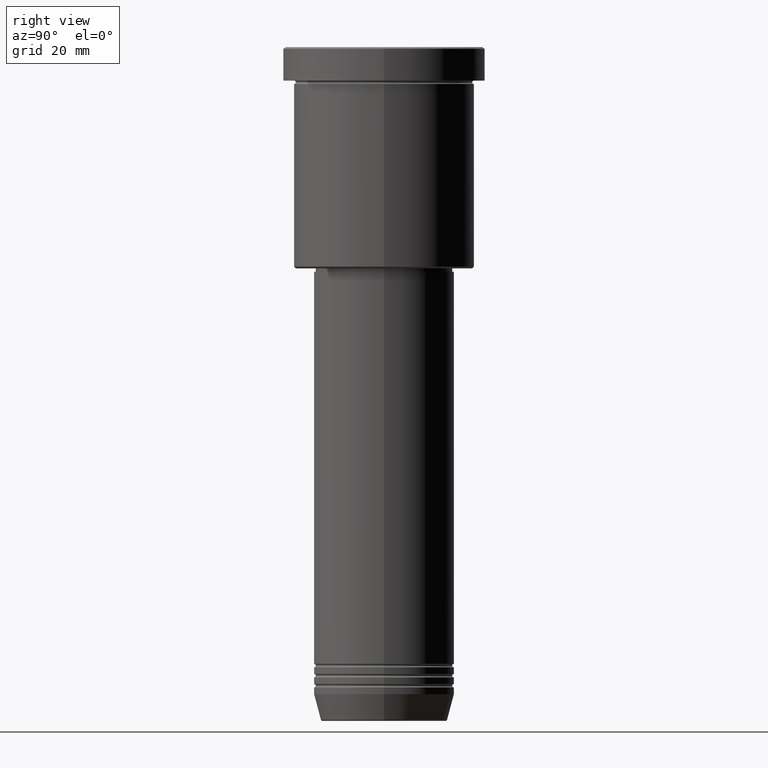
[diagram: clean part render]
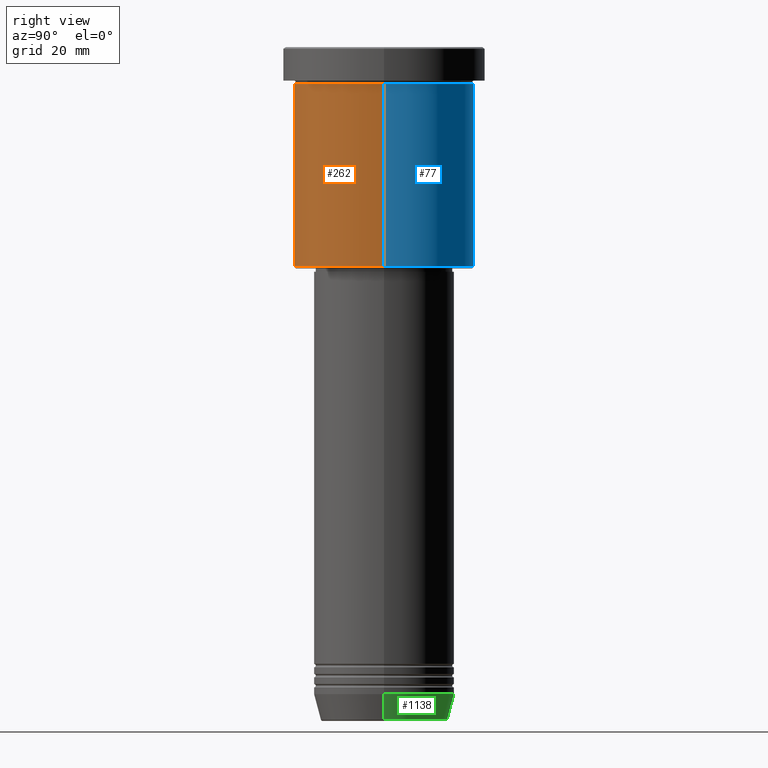
[diagram: same view with three faces highlighted in distinct colors, each labeled with its STEP entity id]
A machine part, right view with three faces highlighted in distinct colors.
Their STEP definitions:

[orange] entity #262 — the highlighted cylindrical surface (partial cylindrical patch) has radius 27 mm, axis along (-0, -0, 1).
#49 = DIRECTION ( 'NONE',  ( 1.000000000000000000, 0.000000000000000000, 0.000000000000000000 ) ) ;
#87 = EDGE_CURVE ( 'NONE', #1119, #996, #559, .T. ) ;
#127 = DIRECTION ( 'NONE',  ( -0.000000000000000000, -0.000000000000000000, 1.000000000000000000 ) ) ;
#151 = DIRECTION ( 'NONE',  ( -0.000000000000000000, -0.000000000000000000, 1.000000000000000000 ) ) ;
#161 = EDGE_CURVE ( 'NONE', #1119, #642, #1127, .T. ) ;
#166 = ORIENTED_EDGE ( 'NONE', *, *, #647, .F. ) ;
#201 = ORIENTED_EDGE ( 'NONE', *, *, #161, .T. ) ;
#211 = EDGE_LOOP ( 'NONE', ( #1009, #201, #582, #166 ) ) ;
#227 = CARTESIAN_POINT ( 'NONE',  ( 0.000000000000000000, 0.000000000000000000, 0.000000000000000000 ) ) ;
#262 = ADVANCED_FACE ( 'NONE', ( #587 ), #953, .T. ) ;
#309 = DIRECTION ( 'NONE',  ( -0.000000000000000000, -0.000000000000000000, 1.000000000000000000 ) ) ;
#328 = EDGE_CURVE ( 'NONE', #642, #1120, #335, .T. ) ;
#335 = LINE ( 'NONE', #1067, #374 ) ;
#374 = VECTOR ( 'NONE', #1159, 1000.000000000000000 ) ;
#484 = DIRECTION ( 'NONE',  ( -0.000000000000000000, -0.000000000000000000, 1.000000000000000000 ) ) ;
#511 = DIRECTION ( 'NONE',  ( -1.000000000000000000, 0.000000000000000000, 0.000000000000000000 ) ) ;
#559 = LINE ( 'NONE', #1123, #579 ) ;
#579 = VECTOR ( 'NONE', #127, 1000.000000000000000 ) ;
#582 = ORIENTED_EDGE ( 'NONE', *, *, #328, .T. ) ;
#587 = FACE_OUTER_BOUND ( 'NONE', #211, .T. ) ;
#635 = AXIS2_PLACEMENT_3D ( 'NONE', #1055, #151, #511 ) ;
#642 = VERTEX_POINT ( 'NONE', #1026 ) ;
#647 = EDGE_CURVE ( 'NONE', #996, #1120, #728, .T. ) ;
#728 = CIRCLE ( 'NONE', #1050, 27.00000000000000355 ) ;
#739 = CARTESIAN_POINT ( 'NONE',  ( 27.00000000000000355, 0.000000000000000000, -10.99999999999999289 ) ) ;
#742 = CARTESIAN_POINT ( 'NONE',  ( -27.00000000000000355, 3.306546357697854128E-15, -65.50000000000002842 ) ) ;
#776 = CARTESIAN_POINT ( 'NONE',  ( 0.000000000000000000, 0.000000000000000000, -10.99999999999999289 ) ) ;
#822 = CARTESIAN_POINT ( 'NONE',  ( -27.00000000000000355, 3.306546357697854128E-15, -10.99999999999999289 ) ) ;
#846 = DIRECTION ( 'NONE',  ( 1.000000000000000000, 0.000000000000000000, 0.000000000000000000 ) ) ;
#953 = CYLINDRICAL_SURFACE ( 'NONE', #979, 27.00000000000000355 ) ;
#979 = AXIS2_PLACEMENT_3D ( 'NONE', #227, #484, #49 ) ;
#996 = VERTEX_POINT ( 'NONE', #822 ) ;
#1009 = ORIENTED_EDGE ( 'NONE', *, *, #87, .F. ) ;
#1026 = CARTESIAN_POINT ( 'NONE',  ( 27.00000000000000355, 0.000000000000000000, -65.50000000000002842 ) ) ;
#1050 = AXIS2_PLACEMENT_3D ( 'NONE', #776, #309, #846 ) ;
#1055 = CARTESIAN_POINT ( 'NONE',  ( 0.000000000000000000, 0.000000000000000000, -65.50000000000002842 ) ) ;
#1067 = CARTESIAN_POINT ( 'NONE',  ( 27.00000000000000355, 0.000000000000000000, 0.000000000000000000 ) ) ;
#1119 = VERTEX_POINT ( 'NONE', #742 ) ;
#1120 = VERTEX_POINT ( 'NONE', #739 ) ;
#1123 = CARTESIAN_POINT ( 'NONE',  ( -27.00000000000000355, 3.306546357697854128E-15, 0.000000000000000000 ) ) ;
#1127 = CIRCLE ( 'NONE', #635, 27.00000000000000355 ) ;
#1159 = DIRECTION ( 'NONE',  ( -0.000000000000000000, -0.000000000000000000, 1.000000000000000000 ) ) ;

[blue] entity #77 — the highlighted cylindrical surface (partial cylindrical patch) has radius 27 mm, axis along (-0, -0, 1).
#35 = DIRECTION ( 'NONE',  ( -0.000000000000000000, -0.000000000000000000, 1.000000000000000000 ) ) ;
#77 = ADVANCED_FACE ( 'NONE', ( #1083 ), #882, .T. ) ;
#87 = EDGE_CURVE ( 'NONE', #1119, #996, #559, .T. ) ;
#127 = DIRECTION ( 'NONE',  ( -0.000000000000000000, -0.000000000000000000, 1.000000000000000000 ) ) ;
#145 = DIRECTION ( 'NONE',  ( 1.000000000000000000, 0.000000000000000000, 0.000000000000000000 ) ) ;
#252 = CARTESIAN_POINT ( 'NONE',  ( 0.000000000000000000, 0.000000000000000000, -10.99999999999999289 ) ) ;
#277 = EDGE_CURVE ( 'NONE', #642, #1119, #921, .T. ) ;
#305 = ORIENTED_EDGE ( 'NONE', *, *, #277, .T. ) ;
#328 = EDGE_CURVE ( 'NONE', #642, #1120, #335, .T. ) ;
#332 = DIRECTION ( 'NONE',  ( 1.000000000000000000, 0.000000000000000000, 0.000000000000000000 ) ) ;
#335 = LINE ( 'NONE', #1067, #374 ) ;
#348 = AXIS2_PLACEMENT_3D ( 'NONE', #252, #1155, #332 ) ;
#374 = VECTOR ( 'NONE', #1159, 1000.000000000000000 ) ;
#381 = ORIENTED_EDGE ( 'NONE', *, *, #87, .T. ) ;
#392 = AXIS2_PLACEMENT_3D ( 'NONE', #474, #35, #1176 ) ;
#412 = EDGE_CURVE ( 'NONE', #1120, #996, #874, .T. ) ;
#414 = AXIS2_PLACEMENT_3D ( 'NONE', #896, #1057, #145 ) ;
#474 = CARTESIAN_POINT ( 'NONE',  ( 0.000000000000000000, 0.000000000000000000, -65.50000000000002842 ) ) ;
#526 = EDGE_LOOP ( 'NONE', ( #305, #381, #1136, #751 ) ) ;
#559 = LINE ( 'NONE', #1123, #579 ) ;
#579 = VECTOR ( 'NONE', #127, 1000.000000000000000 ) ;
#642 = VERTEX_POINT ( 'NONE', #1026 ) ;
#739 = CARTESIAN_POINT ( 'NONE',  ( 27.00000000000000355, 0.000000000000000000, -10.99999999999999289 ) ) ;
#742 = CARTESIAN_POINT ( 'NONE',  ( -27.00000000000000355, 3.306546357697854128E-15, -65.50000000000002842 ) ) ;
#751 = ORIENTED_EDGE ( 'NONE', *, *, #328, .F. ) ;
#822 = CARTESIAN_POINT ( 'NONE',  ( -27.00000000000000355, 3.306546357697854128E-15, -10.99999999999999289 ) ) ;
#874 = CIRCLE ( 'NONE', #348, 27.00000000000000355 ) ;
#882 = CYLINDRICAL_SURFACE ( 'NONE', #414, 27.00000000000000355 ) ;
#896 = CARTESIAN_POINT ( 'NONE',  ( 0.000000000000000000, 0.000000000000000000, 0.000000000000000000 ) ) ;
#921 = CIRCLE ( 'NONE', #392, 27.00000000000000355 ) ;
#996 = VERTEX_POINT ( 'NONE', #822 ) ;
#1026 = CARTESIAN_POINT ( 'NONE',  ( 27.00000000000000355, 0.000000000000000000, -65.50000000000002842 ) ) ;
#1057 = DIRECTION ( 'NONE',  ( -0.000000000000000000, -0.000000000000000000, 1.000000000000000000 ) ) ;
#1067 = CARTESIAN_POINT ( 'NONE',  ( 27.00000000000000355, 0.000000000000000000, 0.000000000000000000 ) ) ;
#1083 = FACE_OUTER_BOUND ( 'NONE', #526, .T. ) ;
#1119 = VERTEX_POINT ( 'NONE', #742 ) ;
#1120 = VERTEX_POINT ( 'NONE', #739 ) ;
#1123 = CARTESIAN_POINT ( 'NONE',  ( -27.00000000000000355, 3.306546357697854128E-15, 0.000000000000000000 ) ) ;
#1136 = ORIENTED_EDGE ( 'NONE', *, *, #412, .F. ) ;
#1155 = DIRECTION ( 'NONE',  ( -0.000000000000000000, -0.000000000000000000, 1.000000000000000000 ) ) ;
#1159 = DIRECTION ( 'NONE',  ( -0.000000000000000000, -0.000000000000000000, 1.000000000000000000 ) ) ;
#1176 = DIRECTION ( 'NONE',  ( -1.000000000000000000, 0.000000000000000000, 0.000000000000000000 ) ) ;

[green] entity #1138 — the highlighted conical surface has half-angle 15 deg.
#8 = ORIENTED_EDGE ( 'NONE', *, *, #1169, .F. ) ;
#19 = CARTESIAN_POINT ( 'NONE',  ( 0.000000000000000000, 0.000000000000000000, -193.0000000000000284 ) ) ;
#20 = ORIENTED_EDGE ( 'NONE', *, *, #443, .T. ) ;
#29 = DIRECTION ( 'NONE',  ( 1.000000000000000000, 0.000000000000000000, 0.000000000000000000 ) ) ;
#67 = CARTESIAN_POINT ( 'NONE',  ( 18.95570587970606624, 0.000000000000000000, -200.6294095225512990 ) ) ;
#95 = VECTOR ( 'NONE', #1132, 1000.000000000000000 ) ;
#179 = CONICAL_SURFACE ( 'NONE', #914, 21.00000000000000000, 0.2617993877991500740 ) ;
#181 = CARTESIAN_POINT ( 'NONE',  ( 0.000000000000000000, 0.000000000000000000, -200.6294095225512990 ) ) ;
#195 = FACE_OUTER_BOUND ( 'NONE', #752, .T. ) ;
#202 = VERTEX_POINT ( 'NONE', #453 ) ;
#221 = DIRECTION ( 'NONE',  ( 1.000000000000000000, 0.000000000000000000, 0.000000000000000000 ) ) ;
#225 = EDGE_CURVE ( 'NONE', #234, #317, #1011, .T. ) ;
#234 = VERTEX_POINT ( 'NONE', #658 ) ;
#317 = VERTEX_POINT ( 'NONE', #329 ) ;
#329 = CARTESIAN_POINT ( 'NONE',  ( -21.00000000000000000, 2.571758278209441661E-15, -193.0000000000000284 ) ) ;
#443 = EDGE_CURVE ( 'NONE', #462, #202, #1128, .T. ) ;
#453 = CARTESIAN_POINT ( 'NONE',  ( -18.95570587970606624, 2.446581365662755730E-15, -200.6294095225512990 ) ) ;
#462 = VERTEX_POINT ( 'NONE', #67 ) ;
#477 = CARTESIAN_POINT ( 'NONE',  ( -21.00000000000000000, 2.571758278209441661E-15, -193.0000000000000284 ) ) ;
#540 = DIRECTION ( 'NONE',  ( -0.000000000000000000, -0.000000000000000000, 1.000000000000000000 ) ) ;
#548 = EDGE_CURVE ( 'NONE', #202, #317, #583, .T. ) ;
#583 = LINE ( 'NONE', #477, #95 ) ;
#645 = ORIENTED_EDGE ( 'NONE', *, *, #548, .T. ) ;
#646 = DIRECTION ( 'NONE',  ( 1.000000000000000000, 0.000000000000000000, 0.000000000000000000 ) ) ;
#658 = CARTESIAN_POINT ( 'NONE',  ( 21.00000000000000000, 0.000000000000000000, -193.0000000000000284 ) ) ;
#740 = DIRECTION ( 'NONE',  ( -0.000000000000000000, -0.000000000000000000, 1.000000000000000000 ) ) ;
#752 = EDGE_LOOP ( 'NONE', ( #20, #645, #1003, #8 ) ) ;
#762 = DIRECTION ( 'NONE',  ( -0.000000000000000000, -0.000000000000000000, 1.000000000000000000 ) ) ;
#810 = AXIS2_PLACEMENT_3D ( 'NONE', #19, #740, #29 ) ;
#850 = AXIS2_PLACEMENT_3D ( 'NONE', #181, #540, #646 ) ;
#865 = DIRECTION ( 'NONE',  ( 0.2588190451025213501, 0.000000000000000000, 0.9659258262890680902 ) ) ;
#875 = CARTESIAN_POINT ( 'NONE',  ( 21.00000000000000000, 0.000000000000000000, -193.0000000000000284 ) ) ;
#879 = LINE ( 'NONE', #875, #1017 ) ;
#914 = AXIS2_PLACEMENT_3D ( 'NONE', #1104, #762, #221 ) ;
#1003 = ORIENTED_EDGE ( 'NONE', *, *, #225, .F. ) ;
#1011 = CIRCLE ( 'NONE', #810, 21.00000000000000000 ) ;
#1017 = VECTOR ( 'NONE', #865, 1000.000000000000000 ) ;
#1104 = CARTESIAN_POINT ( 'NONE',  ( 0.000000000000000000, 0.000000000000000000, -193.0000000000000284 ) ) ;
#1128 = CIRCLE ( 'NONE', #850, 18.95570587970606624 ) ;
#1132 = DIRECTION ( 'NONE',  ( -0.2588190451025213501, 3.169619151431772337E-17, 0.9659258262890680902 ) ) ;
#1138 = ADVANCED_FACE ( 'NONE', ( #195 ), #179, .T. ) ;
#1169 = EDGE_CURVE ( 'NONE', #462, #234, #879, .T. ) ;